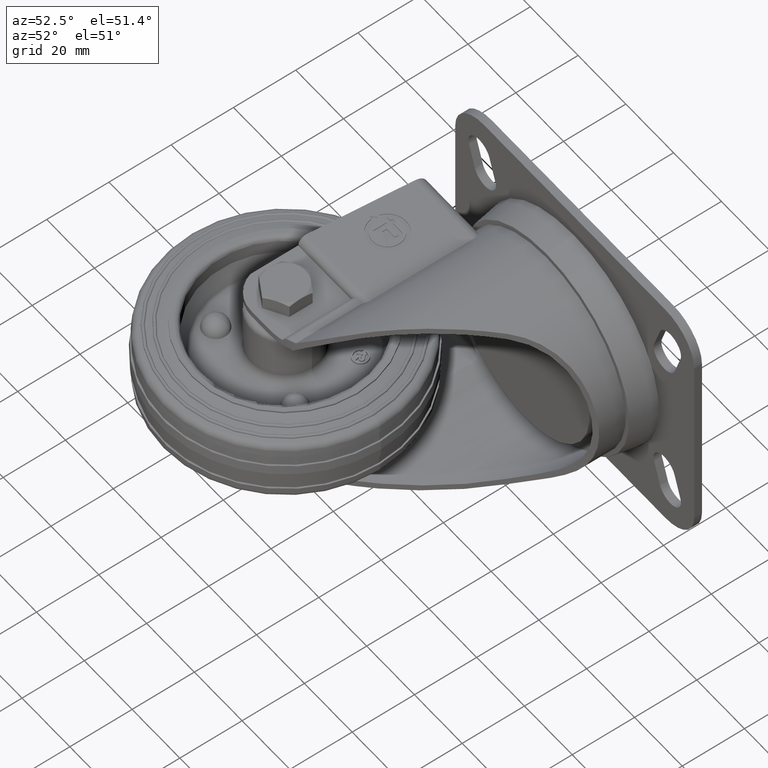
[diagram: clean part render]
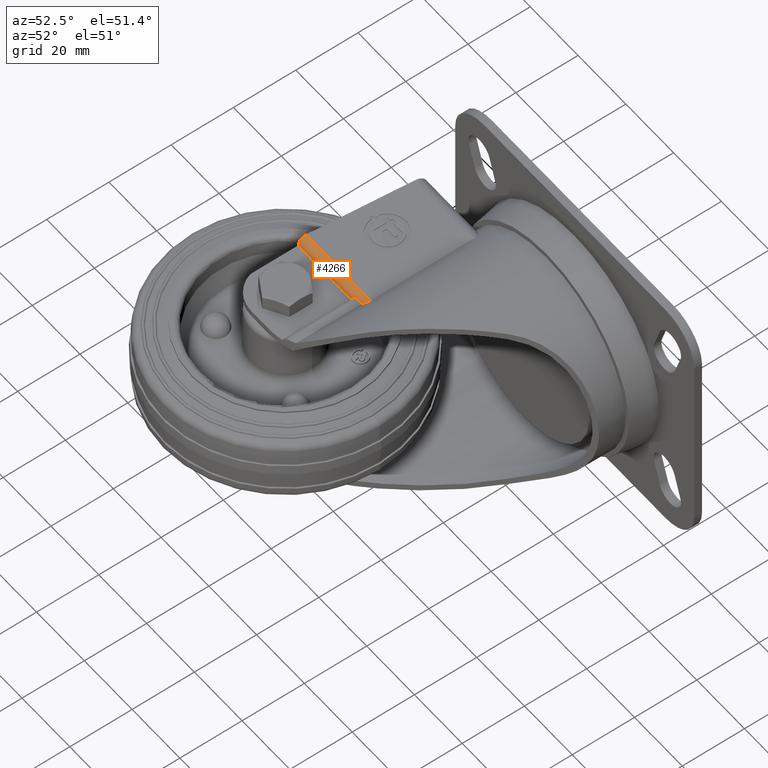
[diagram: same view with one face highlighted and labeled with its STEP entity id]
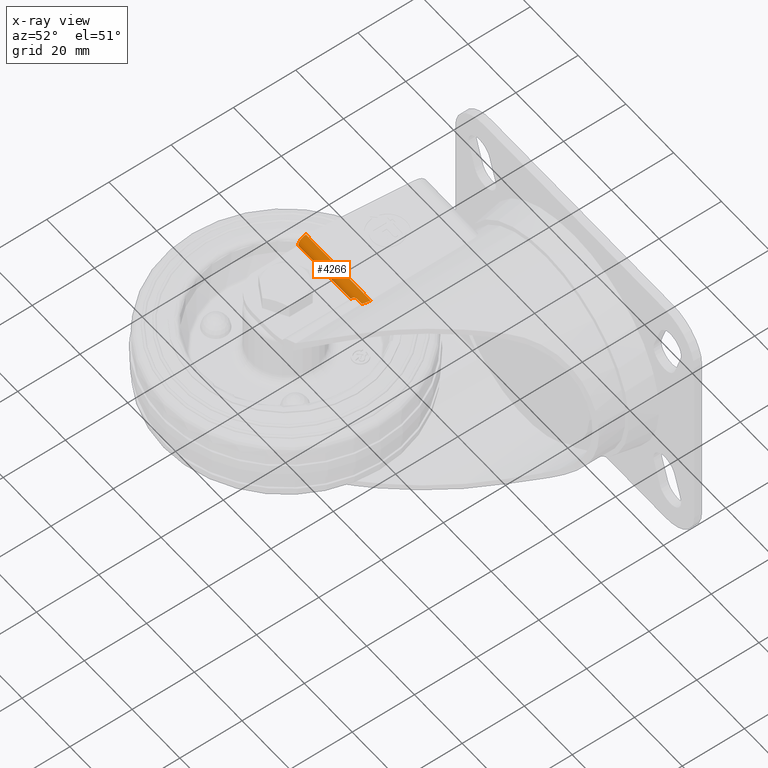
[diagram: x-ray of the same camera — body ghosted, the highlighted face saturated]
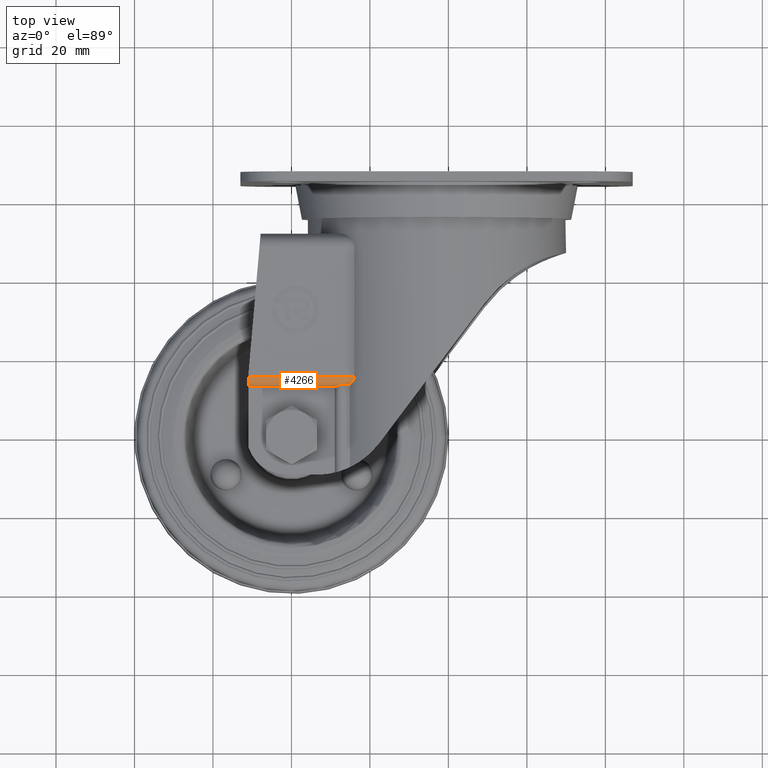
[diagram: same view with one face highlighted and labeled with its STEP entity id]
A machine part, auxiliary view. The second image highlights one B-rep face of the part: STEP entity #4266.
The next image is the same camera in x-ray: the body ghosted, the highlighted face saturated — about 0% of this face is hidden behind the body in this view.
A second angle (top view) of the same face is appended — the face is thin or edge-on in the first view.
In plain terms, the highlighted cylindrical surface (edge-blend (fillet) strip) has radius 2.5 mm, axis along (-1, 0, 0).
Its self-contained STEP definition (entity closure, byte-faithful):
#66=B_SPLINE_CURVE_WITH_KNOTS('',3,(#7028,#7029,#7030,#7031,#7032,#7033,
#7034,#7035,#7036,#7037),.UNSPECIFIED.,.F.,.F.,(4,2,2,2,4),(-0.955825875636909,
-0.928610842756899,-0.85163975155797,-0.774002734508753,-0.696365717459537),
 .UNSPECIFIED.);
#67=B_SPLINE_CURVE_WITH_KNOTS('',3,(#7041,#7042,#7043,#7044,#7045,#7046,
#7047,#7048,#7049,#7050),.UNSPECIFIED.,.F.,.F.,(4,2,2,2,4),(0.912454103738937,
0.959693873500858,1.00693364326278,1.10141318278662,1.16988592681711),
 .UNSPECIFIED.);
#166=CYLINDRICAL_SURFACE('',#4657,2.50000000000001);
#438=CIRCLE('',#4658,2.50000000000001);
#676=FACE_OUTER_BOUND('',#1022,.T.);
#1022=EDGE_LOOP('',(#3469,#3470,#3471,#3472,#3473,#3474));
#1408=LINE('',#7026,#1738);
#1409=LINE('',#7039,#1739);
#1410=LINE('',#7052,#1740);
#1738=VECTOR('',#5639,22.0635083268963);
#1739=VECTOR('',#5640,1.8923090305659);
#1740=VECTOR('',#5641,27.0536399343466);
#2104=VERTEX_POINT('',#7024);
#2105=VERTEX_POINT('',#7025);
#2106=VERTEX_POINT('',#7027);
#2107=VERTEX_POINT('',#7038);
#2108=VERTEX_POINT('',#7040);
#2109=VERTEX_POINT('',#7051);
#2603=EDGE_CURVE('',#2104,#2105,#1408,.T.);
#2604=EDGE_CURVE('',#2105,#2106,#66,.T.);
#2605=EDGE_CURVE('',#2106,#2107,#1409,.T.);
#2606=EDGE_CURVE('',#2108,#2107,#67,.T.);
#2607=EDGE_CURVE('',#2109,#2108,#1410,.T.);
#2608=EDGE_CURVE('',#2109,#2104,#438,.T.);
#3469=ORIENTED_EDGE('',*,*,#2603,.T.);
#3470=ORIENTED_EDGE('',*,*,#2604,.T.);
#3471=ORIENTED_EDGE('',*,*,#2605,.T.);
#3472=ORIENTED_EDGE('',*,*,#2606,.F.);
#3473=ORIENTED_EDGE('',*,*,#2607,.F.);
#3474=ORIENTED_EDGE('',*,*,#2608,.T.);
#4266=ADVANCED_FACE('',(#676),#166,.T.);
#4657=AXIS2_PLACEMENT_3D('',#7023,#5637,#5638);
#4658=AXIS2_PLACEMENT_3D('',#7053,#5642,#5643);
#5637=DIRECTION('center_axis',(-1.,0.,0.));
#5638=DIRECTION('ref_axis',(0.,0.,-1.));
#5639=DIRECTION('',(1.,0.,0.));
#5640=DIRECTION('',(1.,0.,0.));
#5641=DIRECTION('',(1.,0.,0.));
#5642=DIRECTION('center_axis',(1.,0.,0.));
#5643=DIRECTION('ref_axis',(0.,0.,-1.));
#7023=CARTESIAN_POINT('Origin',(-11.,15.,23.));
#7024=CARTESIAN_POINT('',(-11.,12.5,23.));
#7025=CARTESIAN_POINT('',(11.0635083268963,12.5,23.));
#7026=CARTESIAN_POINT('',(-11.,12.5,23.));
#7027=CARTESIAN_POINT('',(13.,13.,24.5));
#7028=CARTESIAN_POINT('Ctrl Pts',(11.0635083268963,12.5,23.));
#7029=CARTESIAN_POINT('Ctrl Pts',(11.0870712518381,12.5,23.0912588158875));
#7030=CARTESIAN_POINT('Ctrl Pts',(11.1172830849171,12.5050446501357,23.1814115789601));
#7031=CARTESIAN_POINT('Ctrl Pts',(11.2564459283138,12.5411822314987,23.5156613005128));
#7032=CARTESIAN_POINT('Ctrl Pts',(11.4109844572121,12.6044743580997,23.7394115819583));
#7033=CARTESIAN_POINT('Ctrl Pts',(11.7621007411182,12.7424272916089,24.0905278658644));
#7034=CARTESIAN_POINT('Ctrl Pts',(11.9831367149791,12.8272207826248,24.2424880164967));
#7035=CARTESIAN_POINT('Ctrl Pts',(12.4721951287084,12.9578734457947,24.4472274585636));
#7036=CARTESIAN_POINT('Ctrl Pts',(12.7412099431693,13.,24.5));
#7037=CARTESIAN_POINT('Ctrl Pts',(13.,13.,24.5));
#7038=CARTESIAN_POINT('',(14.8923090305659,13.,24.5));
#7039=CARTESIAN_POINT('',(-11.,13.,24.5));
#7040=CARTESIAN_POINT('',(16.0536399343466,15.,25.5));
#7041=CARTESIAN_POINT('Ctrl Pts',(16.0536399343466,15.,25.5));
#7042=CARTESIAN_POINT('Ctrl Pts',(16.0536399343466,14.8425341007936,25.5));
#7043=CARTESIAN_POINT('Ctrl Pts',(16.0352202411849,14.6840478966126,25.4849004613035));
#7044=CARTESIAN_POINT('Ctrl Pts',(15.9638212444205,14.376225663684,25.425997034931));
#7045=CARTESIAN_POINT('Ctrl Pts',(15.9109033324512,14.2268691524991,25.3822257932695));
#7046=CARTESIAN_POINT('Ctrl Pts',(15.7130428305967,13.8058394877291,25.2169584519767));
#7047=CARTESIAN_POINT('Ctrl Pts',(15.527697522146,13.5612580328839,25.0599857562847));
#7048=CARTESIAN_POINT('Ctrl Pts',(15.2019904438239,13.2316473048976,24.7765956294862));
#7049=CARTESIAN_POINT('Ctrl Pts',(15.0513096187272,13.1076062000111,24.6434749333481));
#7050=CARTESIAN_POINT('Ctrl Pts',(14.8923090305659,13.,24.5));
#7051=CARTESIAN_POINT('',(-11.,15.,25.5));
#7052=CARTESIAN_POINT('',(-11.,15.,25.5));
#7053=CARTESIAN_POINT('Origin',(-11.,15.,23.));